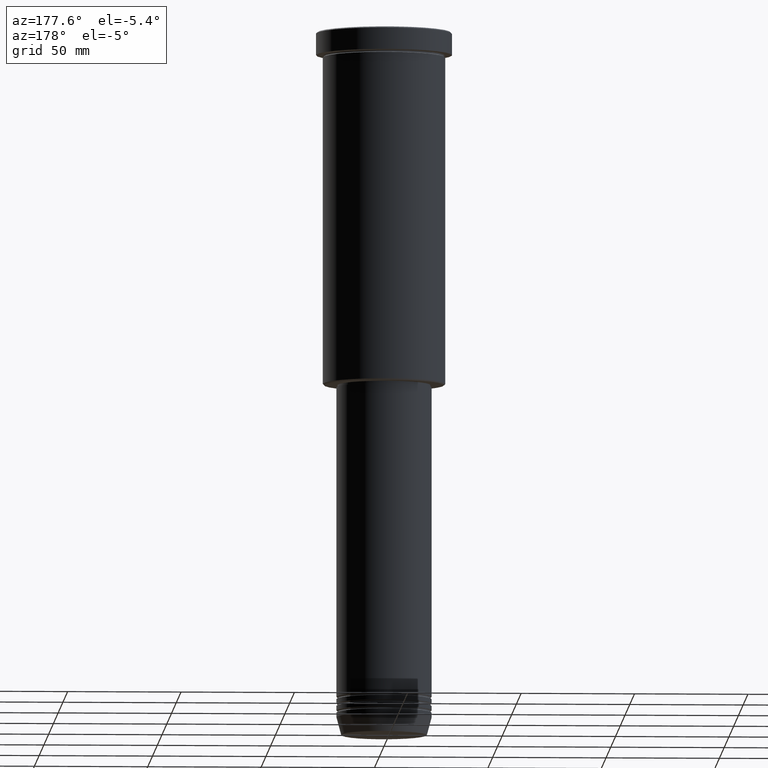
[diagram: clean part render]
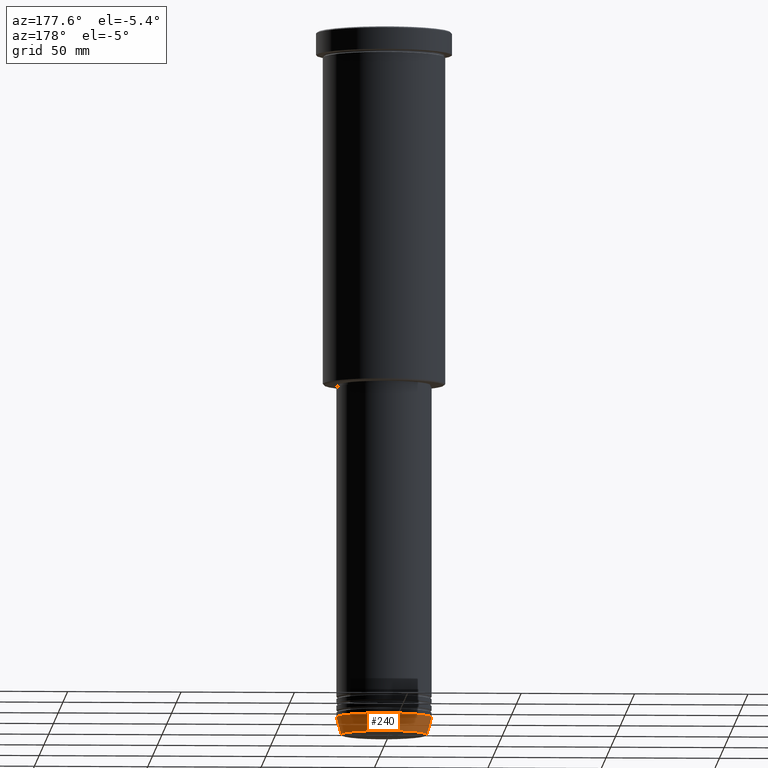
[diagram: same view with one face highlighted and labeled with its STEP entity id]
A machine part, auxiliary view. The second image highlights one B-rep face of the part: STEP entity #240.
In plain terms, the highlighted conical surface has half-angle 15 deg.
Its self-contained STEP definition (entity closure, byte-faithful):
#48 = CARTESIAN_POINT ( 'NONE',  ( 0.000000000000000000, 0.000000000000000000, -303.0000000000000000 ) ) ;
#50 = DIRECTION ( 'NONE',  ( -0.000000000000000000, -0.000000000000000000, 1.000000000000000000 ) ) ;
#114 = CARTESIAN_POINT ( 'NONE',  ( -21.00000000000000000, 2.571758278209441661E-15, -303.0000000000000000 ) ) ;
#138 = DIRECTION ( 'NONE',  ( 1.000000000000000000, 0.000000000000000000, 0.000000000000000000 ) ) ;
#143 = EDGE_CURVE ( 'NONE', #1030, #298, #566, .T. ) ;
#198 = ORIENTED_EDGE ( 'NONE', *, *, #771, .F. ) ;
#220 = AXIS2_PLACEMENT_3D ( 'NONE', #48, #50, #615 ) ;
#226 = CARTESIAN_POINT ( 'NONE',  ( 18.95570587970606624, 0.000000000000000000, -310.6294095225512706 ) ) ;
#228 = CARTESIAN_POINT ( 'NONE',  ( -18.95570587970606624, 2.446581365662755730E-15, -310.6294095225512706 ) ) ;
#240 = ADVANCED_FACE ( 'NONE', ( #251 ), #900, .T. ) ;
#242 = CARTESIAN_POINT ( 'NONE',  ( 0.000000000000000000, 0.000000000000000000, -310.6294095225512706 ) ) ;
#251 = FACE_OUTER_BOUND ( 'NONE', #955, .T. ) ;
#275 = EDGE_CURVE ( 'NONE', #1030, #372, #1076, .T. ) ;
#298 = VERTEX_POINT ( 'NONE', #785 ) ;
#351 = EDGE_CURVE ( 'NONE', #372, #896, #423, .T. ) ;
#372 = VERTEX_POINT ( 'NONE', #228 ) ;
#381 = CARTESIAN_POINT ( 'NONE',  ( 21.00000000000000000, 0.000000000000000000, -303.0000000000000000 ) ) ;
#386 = AXIS2_PLACEMENT_3D ( 'NONE', #953, #1097, #599 ) ;
#403 = ORIENTED_EDGE ( 'NONE', *, *, #351, .T. ) ;
#423 = LINE ( 'NONE', #1158, #903 ) ;
#458 = ORIENTED_EDGE ( 'NONE', *, *, #143, .F. ) ;
#519 = VECTOR ( 'NONE', #722, 1000.000000000000114 ) ;
#566 = LINE ( 'NONE', #381, #519 ) ;
#599 = DIRECTION ( 'NONE',  ( 1.000000000000000000, 0.000000000000000000, 0.000000000000000000 ) ) ;
#615 = DIRECTION ( 'NONE',  ( 1.000000000000000000, 0.000000000000000000, 0.000000000000000000 ) ) ;
#679 = ORIENTED_EDGE ( 'NONE', *, *, #275, .T. ) ;
#722 = DIRECTION ( 'NONE',  ( 0.2588190451025212391, 0.000000000000000000, 0.9659258262890680902 ) ) ;
#726 = CIRCLE ( 'NONE', #220, 21.00000000000000000 ) ;
#750 = AXIS2_PLACEMENT_3D ( 'NONE', #242, #1179, #138 ) ;
#771 = EDGE_CURVE ( 'NONE', #298, #896, #726, .T. ) ;
#785 = CARTESIAN_POINT ( 'NONE',  ( 21.00000000000000000, 0.000000000000000000, -303.0000000000000000 ) ) ;
#896 = VERTEX_POINT ( 'NONE', #114 ) ;
#900 = CONICAL_SURFACE ( 'NONE', #386, 21.00000000000000000, 0.2617993877991499629 ) ;
#903 = VECTOR ( 'NONE', #989, 1000.000000000000114 ) ;
#953 = CARTESIAN_POINT ( 'NONE',  ( 0.000000000000000000, 0.000000000000000000, -303.0000000000000000 ) ) ;
#955 = EDGE_LOOP ( 'NONE', ( #679, #403, #198, #458 ) ) ;
#989 = DIRECTION ( 'NONE',  ( -0.2588190451025212391, 3.169619151431771721E-17, 0.9659258262890680902 ) ) ;
#1030 = VERTEX_POINT ( 'NONE', #226 ) ;
#1076 = CIRCLE ( 'NONE', #750, 18.95570587970606624 ) ;
#1097 = DIRECTION ( 'NONE',  ( -0.000000000000000000, -0.000000000000000000, 1.000000000000000000 ) ) ;
#1158 = CARTESIAN_POINT ( 'NONE',  ( -21.00000000000000000, 2.571758278209441661E-15, -303.0000000000000000 ) ) ;
#1179 = DIRECTION ( 'NONE',  ( -0.000000000000000000, -0.000000000000000000, 1.000000000000000000 ) ) ;